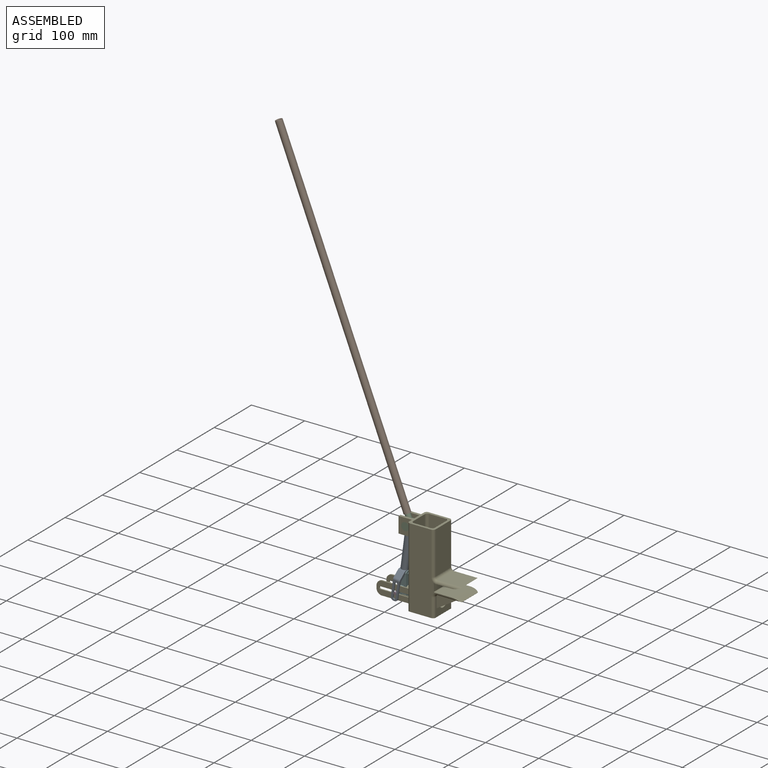
[diagram: assembled view]
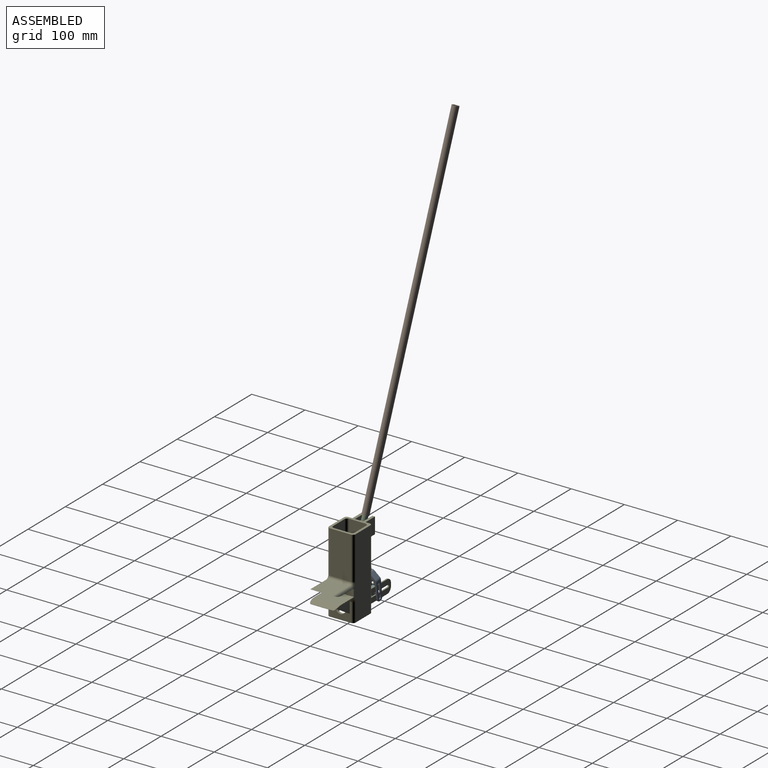
[diagram: assembled view, second angle]
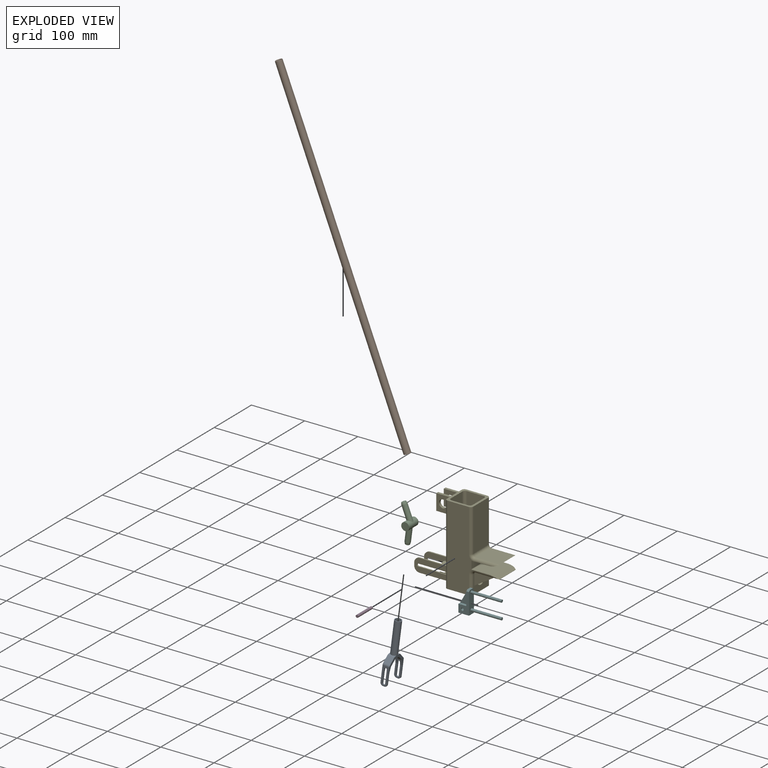
[diagram: exploded view]
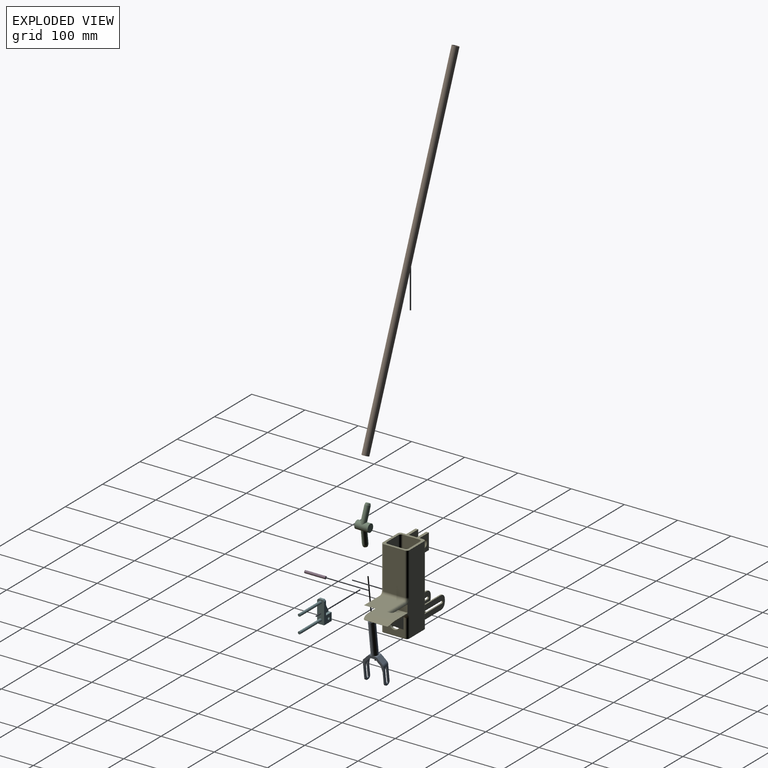
[diagram: exploded view, second angle]
ASSEMBLY  parts=6 mates=6
PART A: 43 faces, bbox 39.1x110.1x12.6 mm
  f0: plane 35.43x12.5mm, normal (-1,0,0), area 287.5mm2, adj f7,f14,f24,f26,f35,f36,f37,f38
  f1: plane 35.43x12.5mm, normal (1,0,0), area 287.5mm2, adj f7,f14,f17,f25,f31,f32,f33,f34
  f2: plane 25x12.5mm, normal (-1,0,0), area 192mm2, adj f5,f7,f14,f25,f32,f33,f34,f41
  f3: plane 25x12.5mm, normal (1,0,0), area 192mm2, adj f4,f7,f14,f26,f35,f36,f37,f39
  f4: plane 12.5x10.43mm, normal (0.97,-0.23,0), area 98.3mm2, adj f3,f7,f14,f28,f36,f37,f38
  f5: plane 12.5x10.43mm, normal (-0.97,-0.23,0), area 98.3mm2, adj f2,f7,f14,f30,f31,f32,f33
  f6: cylinder r=5mm len=65mm, axis (0,1,0), area 2042mm2, adj f11,f27,f28,f29,f30
  f7: plane 45x39mm, normal (0,0,1), area 402.1mm2, adj f0,f1,f2,f3,f4,f5,f9,f13
  f8: plane 4.93x2.41mm, normal (0,1,0), area 3.6mm2, adj f10,f14,f23
  f9: plane 4.93x2.41mm, normal (0,1,0), area 3.6mm2, adj f7,f10,f20
  f10: cylinder r=6.25mm len=60mm, axis (0,1,0), area 2356.2mm2, adj f8,f9,f11,f12,f13,f19,f22
  f11: plane 12.5x12.5mm, normal (0,1,0), area 44.2mm2, adj f6,f10
  f12: plane 4.93x2.41mm, normal (0,1,0), area 3.6mm2, adj f10,f14,f18
  f13: plane 4.93x2.41mm, normal (0,1,0), area 3.6mm2, adj f7,f10,f21
  f14: plane 45x39mm, normal (0,0,-1), area 402.1mm2, adj f0,f1,f2,f3,f4,f5,f8,f12
  f15: plane 12.5x9.83mm, normal (-0.71,0.71,0), area 170.5mm2, adj f7,f14,f21,f22,f23,f24
  f16: plane 12.5x9.83mm, normal (0.71,0.71,0), area 170.5mm2, adj f7,f14,f17,f18,f19,f20
  f17: cylinder r=5mm len=12.5mm, axis (0,0,1), area 49.1mm2, adj f1,f7,f14,f16
  f18: cylinder r=5mm len=3.54mm, axis (0,0,1), area 9.5mm2, adj f12,f14,f16,f19
  f19: bspline ~8.74x3.83mm, area 22.3mm2, adj f10,f16,f18,f20
  f20: cylinder r=5mm len=3.54mm, axis (0,0,1), area 9.5mm2, adj f7,f9,f16,f19
  f21: cylinder r=5mm len=3.54mm, axis (0,0,1), area 9.5mm2, adj f7,f13,f15,f22
  f22: bspline ~8.74x3.83mm, area 22.3mm2, adj f10,f15,f21,f23
  f23: cylinder r=5mm len=3.54mm, axis (0,0,1), area 9.5mm2, adj f8,f14,f15,f22
  f24: cylinder r=5mm len=12.5mm, axis (0,0,-1), area 49.1mm2, adj f0,f7,f14,f15
  f25: plane 2.5x2.5mm, normal (0,-1,0), area 6.2mm2, adj f1,f2,f41,f42
  f26: plane 2.5x2.5mm, normal (0,-1,0), area 6.2mm2, adj f0,f3,f39,f40
  f27: plane 9.86x5.41mm, normal (0,-1,0), area 22.4mm2, adj f6,f7,f28,f30
  f28: plane 12.64x9.71mm, normal (0.71,-0.71,0), area 169.1mm2, adj f4,f6,f7,f14,f27,f29
  f29: plane 9.86x5.41mm, normal (0,-1,0), area 22.4mm2, adj f6,f14,f28,f30
  f30: plane 12.64x9.71mm, normal (-0.71,-0.71,0), area 169.1mm2, adj f5,f6,f7,f14,f27,f29
  f31: cylinder r=2.5mm len=5mm, axis (1,0,0), area 32mm2, adj f1,f5,f32,f33
  f32: plane 25x3.7mm, normal (0,0,1), area 65.5mm2, adj f1,f2,f5,f31,f34
  f33: plane 25x3.7mm, normal (0,0,-1), area 65.5mm2, adj f1,f2,f5,f31,f34
  f34: cylinder r=2.5mm len=5mm, axis (1,0,0), area 19.6mm2, adj f1,f2,f32,f33
  f35: cylinder r=2.5mm len=5mm, axis (1,0,0), area 19.6mm2, adj f0,f3,f36,f37
  f36: plane 25x3.7mm, normal (0,0,-1), area 65.5mm2, adj f0,f3,f4,f35,f38
  f37: plane 25x3.7mm, normal (0,0,1), area 65.5mm2, adj f0,f3,f4,f35,f38
  f38: cylinder r=2.5mm len=5mm, axis (1,0,0), area 32mm2, adj f0,f4,f36,f37
  f39: cylinder r=5mm len=5mm, axis (1,0,0), area 19.6mm2, adj f0,f3,f7,f26
  f40: cylinder r=5mm len=5mm, axis (-1,0,0), area 19.6mm2, adj f0,f3,f14,f26
  f41: cylinder r=5mm len=5mm, axis (-1,0,0), area 19.6mm2, adj f1,f2,f14,f25
  f42: cylinder r=5mm len=5mm, axis (1,0,0), area 19.6mm2, adj f1,f2,f7,f25
PART B: 4 faces, bbox 12.5x12.5x650 mm
  f0: cylinder r=5mm len=650mm, axis (0,0,-1), area 20420.4mm2, adj f2,f3
  f1: cylinder r=6.25mm len=650mm, axis (0,0,-1), area 25525.4mm2, adj f2,f3
  f2: plane 12.5x12.5mm, normal (0,0,1), area 44.2mm2, adj f0,f1
  f3: plane 12.5x12.5mm, normal (0,0,-1), area 44.2mm2, adj f0,f1
PART C: 10 faces, bbox 25x27.2x70.7 mm
  f0: plane 8x8mm, normal (0,0,-1), area 50.3mm2, adj f8
  f1: cylinder r=5mm len=26.27mm, axis (0,0,-1), area 794.1mm2, adj f2,f8
  f2: cylinder r=7.5mm len=25mm, axis (-1,0,0), area 1002mm2, adj f1,f3,f4,f6
  f3: plane 15x15mm, normal (1,0,0), area 176.7mm2, adj f2
  f4: plane 15x15mm, normal (-1,0,0), area 176.7mm2, adj f2
  f5: plane 6.47x5.64mm, normal (0,0.49,0.87), area 32.8mm2, adj f9
  f6: cylinder r=5mm len=31.91mm, axis (0,0.49,0.87), area 854.3mm2, adj f2,f7
  f7: cone r=4mm half-angle=15deg, axis (0,-0.49,-0.87), area 89.5mm2, adj f6,f9
  f8: cone r=4mm half-angle=15deg, axis (0,0,1), area 109.2mm2, adj f0,f1
  f9: torus R=3.23mm, axis (0,0.49,0.87), area 31.2mm2, adj f5,f7
PART D: 3 faces, bbox 39x5x5 mm
  f0: cylinder r=2.5mm len=39mm, axis (-1,0,0), area 612.6mm2, adj f1,f2
  f1: plane 5x5mm, normal (1,0,0), area 19.6mm2, adj f0
  f2: plane 5x5mm, normal (-1,0,0), area 19.6mm2, adj f0
PART E: 91 faces, bbox 165x50x150 mm
  f0: cylinder r=10mm len=24.5mm, axis (-1,0,0), area 1337.2mm2, adj f5,f6,f48,f76,f77,f78,f79,f80
  f1: plane 65x25mm, normal (0,1,0), area 1284.8mm2, adj f6,f68,f69,f70,f84,f85,f86,f89
  f2: plane 65x25mm, normal (0,-1,0), area 1284.8mm2, adj f6,f68,f69,f70,f84,f85,f86,f89
  f3: plane 65x25mm, normal (0,1,0), area 1284.8mm2, adj f6,f71,f72,f73,f81,f82,f83,f87
  f4: cylinder r=11mm len=21.42mm, axis (1,0,0), area 590.3mm2, adj f5,f6,f77,f80
  f5: plane 21.42x8.5mm, normal (-1,0,0), area 27.9mm2, adj f0,f4,f77,f80
  f6: plane 150x40mm, normal (-1,0,0), area 5230mm2, adj f0,f1,f2,f3,f4,f13,f14,f40
  f7: plane 40x25mm, normal (0,-1,0), area 494.6mm2, adj f10,f11,f15,f57
  f8: plane 40x25mm, normal (0,1,0), area 494.6mm2, adj f10,f15,f26,f56
  f9: plane 40x25mm, normal (0,-1,0), area 494.6mm2, adj f10,f12,f15,f56
  f10: plane 40x35mm, normal (1,0,0), area 885.8mm2, adj f7,f8,f9,f11,f12,f14,f26,f34
  f11: cylinder r=5mm len=5mm, axis (0,-1,0), area 19.6mm2, adj f7,f10,f15,f38
  f12: cylinder r=5mm len=25mm, axis (0,-1,0), area 196.3mm2, adj f9,f10,f15,f55
  f13: plane 75x50mm, normal (0,0,1), area 1069mm2, adj f6,f21,f22,f23,f28,f31,f40,f41
  f14: plane 50x50mm, normal (0,0,-1), area 819mm2, adj f6,f10,f22,f23,f34,f37,f40,f41
  f15: plane 45x40mm, normal (0,0,-1), area 1450mm2, adj f7,f8,f9,f11,f12,f16,f26,f36
  f16: plane 43.61x0.34mm, normal (1,0,0), area 14.3mm2, adj f15,f36,f39,f42
  f17: plane 50x32.35mm, normal (0,0,1), area 1617.5mm2, adj f22,f23,f24,f36,f39,f43
  f18: plane 50x13mm, normal (1,0,0), area 650mm2, adj f22,f23,f24,f25
  f19: plane 50x31.63mm, normal (0,0,-1), area 1581.3mm2, adj f22,f23,f25,f30,f33,f45
  f20: plane 45x40mm, normal (0,0,1), area 1800mm2, adj f27,f30,f33,f44
  f21: plane 80x40mm, normal (1,0,0), area 3200mm2, adj f13,f27,f28,f31
  f22: plane 150x50mm, normal (0,-1,0), area 6118.3mm2, adj f13,f14,f17,f18,f19,f24,f25,f28
  f23: plane 150x50mm, normal (0,1,0), area 6118.3mm2, adj f13,f14,f17,f18,f19,f24,f25,f31
  f24: cylinder r=1mm len=50mm, axis (0,-1,0), area 78.5mm2, adj f17,f18,f22,f23
  f25: cylinder r=1mm len=50mm, axis (0,-1,0), area 78.5mm2, adj f18,f19,f22,f23
  f26: cylinder r=5mm len=5mm, axis (0,-1,0), area 19.6mm2, adj f8,f10,f15,f35
  f27: cylinder r=5mm len=40mm, axis (0,-1,0), area 314.2mm2, adj f20,f21,f29,f32
  f28: cylinder r=5mm len=80mm, axis (0,0,-1), area 628.3mm2, adj f13,f21,f22,f29
  f29: torus R=10mm, axis (0,-1,0), area 84.1mm2, adj f22,f27,f28,f30
  f30: cylinder r=5mm len=45mm, axis (1,0,0), area 319.6mm2, adj f19,f20,f29,f44,f45
  f31: cylinder r=5mm len=80mm, axis (0,0,1), area 628.3mm2, adj f13,f21,f23,f32
  f32: torus R=10mm, axis (0,-1,0), area 84.1mm2, adj f23,f27,f31,f33
  f33: cylinder r=5mm len=45mm, axis (-1,0,0), area 319.6mm2, adj f19,f20,f32,f44,f45
  f34: cylinder r=5mm len=35mm, axis (0,0,1), area 274.9mm2, adj f10,f14,f23,f35
  f35: torus R=10mm, axis (0,-1,0), area 84.1mm2, adj f23,f26,f34,f36
  f36: cylinder r=5mm len=45mm, axis (1,0,0), area 324.4mm2, adj f15,f16,f17,f35,f42,f43
  f37: cylinder r=5mm len=35mm, axis (0,0,-1), area 274.9mm2, adj f10,f14,f22,f38
  f38: torus R=10mm, axis (0,-1,0), area 84.1mm2, adj f11,f22,f37,f39
  f39: cylinder r=5mm len=45mm, axis (-1,0,0), area 324.4mm2, adj f15,f16,f17,f38,f42,f43
  f40: cylinder r=5mm len=150mm, axis (0,0,-1), area 1178.1mm2, adj f6,f13,f14,f23
  f41: cylinder r=5mm len=150mm, axis (0,0,1), area 1178.1mm2, adj f6,f13,f14,f22
  f42: plane 48.27x3.97mm, normal (0.42,0,0.91), area 203.5mm2, adj f16,f36,f39,f43
  f43: cylinder r=30mm len=50mm, axis (0,1,0), area 650.1mm2, adj f17,f36,f39,f42
  f44: plane 48.27x4.7mm, normal (0.42,0,-0.91), area 237.3mm2, adj f20,f30,f33,f45
  f45: cylinder r=30mm len=50mm, axis (0,-1,0), area 650.1mm2, adj f19,f30,f33,f44
  f46: cylinder r=10mm len=20mm, axis (-1,0,0), area 282.7mm2, adj f10,f47
  f47: plane 150x31mm, normal (-1,0,0), area 4335.8mm2, adj f13,f14,f46,f51,f52
  f48: plane 150x31mm, normal (1,0,0), area 4335.8mm2, adj f0,f13,f14,f53,f54
  f49: plane 150x31mm, normal (0,1,0), area 4650mm2, adj f13,f14,f51,f54
  f50: plane 150x31mm, normal (0,-1,0), area 4650mm2, adj f13,f14,f52,f53
  f51: cylinder r=5mm len=150mm, axis (0,0,1), area 1178.1mm2, adj f13,f14,f47,f49
  f52: cylinder r=5mm len=150mm, axis (0,0,-1), area 1178.1mm2, adj f13,f14,f47,f50
  f53: cylinder r=5mm len=150mm, axis (0,0,1), area 1178.1mm2, adj f13,f14,f48,f50
  f54: cylinder r=5mm len=150mm, axis (0,0,-1), area 1178.1mm2, adj f13,f14,f48,f49
  f55: plane 40x25mm, normal (0,1,0), area 494.6mm2, adj f10,f12,f15,f57
  f56: plane 40x25mm, normal (0.53,0,-0.85), area 235.8mm2, adj f8,f9,f10,f15
  f57: plane 40x25mm, normal (0.53,0,-0.85), area 235.8mm2, adj f7,f10,f15,f55
  f58: plane 30x5mm, normal (-1,0,0), area 150mm2, adj f13,f59,f60,f61
  f59: plane 25x5mm, normal (0,0,-1), area 125mm2, adj f6,f58,f60,f61
  f60: plane 30x25mm, normal (0,-1,0), area 573.3mm2, adj f6,f13,f58,f59,f67
  f61: plane 30x25mm, normal (0,1,0), area 573.3mm2, adj f6,f13,f58,f59,f67
  f62: plane 30x5mm, normal (-1,0,0), area 150mm2, adj f13,f63,f64,f65
  f63: plane 25x5mm, normal (0,0,-1), area 125mm2, adj f6,f62,f64,f65
  f64: plane 30x25mm, normal (0,-1,0), area 573.3mm2, adj f6,f13,f62,f63,f66
  f65: plane 30x25mm, normal (0,1,0), area 573.3mm2, adj f6,f13,f62,f63,f66
  f66: cylinder r=7.5mm len=15mm, axis (0,-1,0), area 235.6mm2, adj f64,f65
  f67: cylinder r=7.5mm len=15mm, axis (0,-1,0), area 235.6mm2, adj f60,f61
  f68: plane 55x2.5mm, normal (0,0,-1), area 137.5mm2, adj f1,f2,f6,f89
  f69: plane 5x2.5mm, normal (-1,0,0), area 12.5mm2, adj f1,f2,f89,f90
  f70: plane 55x2.5mm, normal (0,0,1), area 137.5mm2, adj f1,f2,f6,f90
  f71: plane 55x2.5mm, normal (0,0,-1), area 137.5mm2, adj f3,f6,f74,f87
  f72: plane 5x2.5mm, normal (-1,0,0), area 12.5mm2, adj f3,f74,f87,f88
  f73: plane 55x2.5mm, normal (0,0,1), area 137.5mm2, adj f3,f6,f74,f88
  f74: plane 65x25mm, normal (0,-1,0), area 1284.8mm2, adj f6,f71,f72,f73,f81,f82,f83,f87
  f75: cylinder r=11mm len=21.42mm, axis (1,0,0), area 590.3mm2, adj f6,f76,f78,f79
  f76: plane 21.42x8.5mm, normal (-1,0,0), area 27.9mm2, adj f0,f75,f78,f79
  f77: plane 20x1.03mm, normal (0,0,-1), area 20.6mm2, adj f0,f4,f5,f6
  f78: plane 20x1.03mm, normal (0,0,1), area 20.6mm2, adj f0,f6,f75,f76
  f79: plane 20x1.03mm, normal (0,0,1), area 20.6mm2, adj f0,f6,f75,f76
  f80: plane 20x1.03mm, normal (0,0,-1), area 20.6mm2, adj f0,f4,f5,f6
  f81: cylinder r=2.5mm len=5mm, axis (0,-1,0), area 19.6mm2, adj f3,f74,f82,f83
  f82: plane 57.5x2.5mm, normal (0,0,1), area 143.8mm2, adj f3,f6,f74,f81
  f83: plane 57.5x2.5mm, normal (0,0,-1), area 143.8mm2, adj f3,f6,f74,f81
  f84: cylinder r=2.5mm len=5mm, axis (0,-1,0), area 19.6mm2, adj f1,f2,f85,f86
  f85: plane 57.5x2.5mm, normal (0,0,-1), area 143.7mm2, adj f1,f2,f6,f84
  f86: plane 57.5x2.5mm, normal (0,0,1), area 143.7mm2, adj f1,f2,f6,f84
  f87: cylinder r=10mm len=10mm, axis (0,-1,0), area 39.3mm2, adj f3,f71,f72,f74
  f88: cylinder r=10mm len=10mm, axis (0,1,0), area 39.3mm2, adj f3,f72,f73,f74
  f89: cylinder r=10mm len=10mm, axis (0,-1,0), area 39.3mm2, adj f1,f2,f68,f69
  f90: cylinder r=10mm len=10mm, axis (0,1,0), area 39.3mm2, adj f1,f2,f69,f70
PART F: 20 faces, bbox 13.2x77.5x42.5 mm
  f0: plane 15x13.23mm, normal (0,-1,0), area 198.4mm2, adj f1,f3,f4,f5,f6,f17
  f1: plane 15x5.36mm, normal (0,0,1), area 80.5mm2, adj f0,f5,f8,f15
  f2: plane 27.5x5.36mm, normal (0,-1,0), area 144.4mm2, adj f3,f4,f10,f16,f19
  f3: plane 40x20mm, normal (1,0,0), area 405.4mm2, adj f0,f2,f4,f6,f7,f9,f19
  f4: plane 15x5.36mm, normal (0,0,1), area 80.5mm2, adj f0,f2,f3,f16
  f5: plane 40x20mm, normal (-1,0,0), area 405.4mm2, adj f0,f1,f6,f7,f8,f9,f18
  f6: plane 20x13.23mm, normal (0,0,-1), area 264.6mm2, adj f0,f3,f5,f9
  f7: cylinder r=2.5mm len=13.23mm, axis (1,0,0), area 207.8mm2, adj f3,f5
  f8: plane 27.5x5.36mm, normal (0,-1,0), area 144.4mm2, adj f1,f5,f10,f15,f18
  f9: plane 42.5x13.23mm, normal (0,1,0), area 516.7mm2, adj f3,f5,f6,f10,f11,f13,f18,f19
  f10: plane 8.23x5mm, normal (0,0,1), area 41.1mm2, adj f2,f8,f9,f17,f18,f19
  f11: cylinder r=2.5mm len=57.5mm, axis (0,-1,0), area 903.2mm2, adj f9,f12
  f12: plane 5x5mm, normal (0,1,0), area 19.6mm2, adj f11
  f13: cylinder r=2.5mm len=57.5mm, axis (0,-1,0), area 903.2mm2, adj f9,f14
  f14: plane 5x5mm, normal (0,1,0), area 19.6mm2, adj f13
  f15: plane 27.5x15mm, normal (-1,0,0), area 206.3mm2, adj f1,f8,f17
  f16: plane 27.5x15mm, normal (1,0,0), area 206.2mm2, adj f2,f4,f17
  f17: plane 27.5x15mm, normal (0,-0.88,0.48), area 78.3mm2, adj f0,f10,f15,f16
  f18: plane 5x2.5mm, normal (-0.71,0,0.71), area 17.7mm2, adj f5,f8,f9,f10
  f19: plane 5x2.5mm, normal (0.71,0,0.71), area 17.7mm2, adj f2,f3,f9,f10
PLACE A rot(axis=(0.6,0.6,0.53),124.3deg) t=(-155.46,-84.73,64.64)mm
PLACE B rot(axis=(0,-1,0),21.8deg) t=(-66.51,-62.4,105.69)mm
PLACE C rot(axis=(0.06,0.06,1),90.2deg) t=(-135.31,-37.85,60.32)mm
PLACE D rot(axis=(0.63,0.63,0.46),130.6deg) t=(-129.21,-44.85,10.06)mm
PLACE E t=(-51.17,-0.35,13.72)mm fixed
PLACE F rot(axis=(0,0,-1),90deg) t=(-51.72,22.83,-71.21)mm
MATE slider F.f11 <-> E.f0  axis (1,0,0) through (-39.22,-25.35,-39.46)mm
MATE fastened A.f6 <-> C.f8  axis (0.13,0,0.99) through (-96.74,-25.35,57.05)mm
MATE cylindrical F.f7 <-> D.f0  axis (0,-1,0) through (-109.22,-25.35,-39.46)mm
MATE fastened B.f0 <-> C.f9  axis (0.37,0,-0.93) through (-98.91,-25.35,92.71)mm
MATE planar D.f0 <-> A.f34  axis (0,-1,0) through (-109.22,-44.85,-39.46)mm
MATE revolute C.f2 <-> E.f66  axis (0,-1,0) through (-94.35,-37.85,75.54)mm
